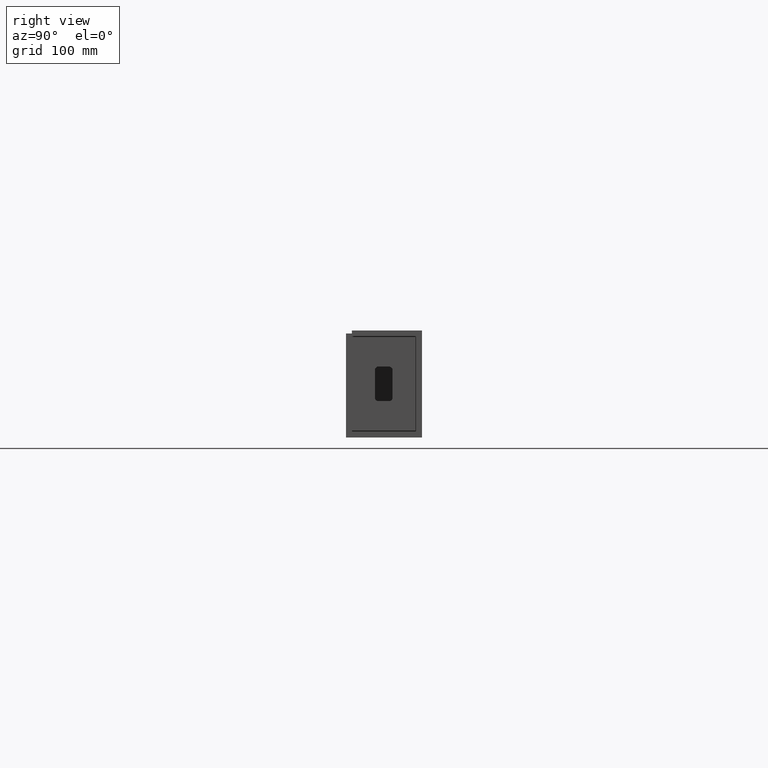
[diagram: clean part render]
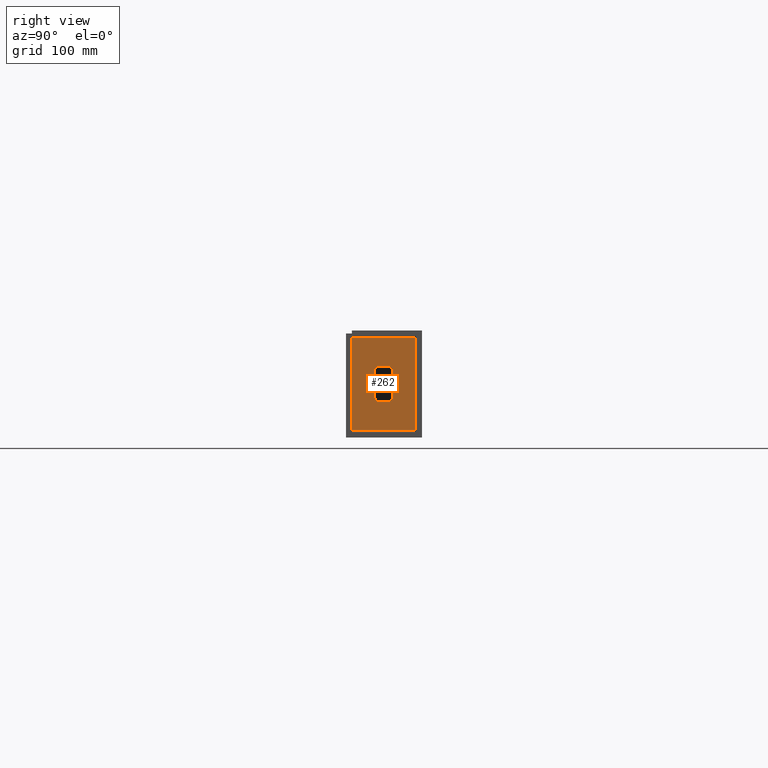
[diagram: same view with one face highlighted and labeled with its STEP entity id]
A machine part, right view. The second image highlights one B-rep face of the part: STEP entity #262.
In plain terms, the highlighted planar face has unit normal (-1, 0, 0).
Its self-contained STEP definition (entity closure, byte-faithful):
#4 = DIRECTION ( 'NONE',  ( -0.0000000000000000000, -0.0000000000000000000, 1.000000000000000000 ) ) ;
#5 = CARTESIAN_POINT ( 'NONE',  ( 975.0000000000000000, 62.99999999999997158, 90.99999999999997158 ) ) ;
#6 = LINE ( 'NONE', #5, #121 ) ;
#21 = DIRECTION ( 'NONE',  ( 0.0000000000000000000, 0.0000000000000000000, 1.000000000000000000 ) ) ;
#22 = DIRECTION ( 'NONE',  ( 1.000000000000000000, 0.0000000000000000000, -0.0000000000000000000 ) ) ;
#23 = CARTESIAN_POINT ( 'NONE',  ( 975.0000000000000000, 43.99999999999996447, 90.99999999999997158 ) ) ;
#29 = CARTESIAN_POINT ( 'NONE',  ( 975.0000000000000000, 93.99999999999997158, 9.000000000000001776 ) ) ;
#40 = CARTESIAN_POINT ( 'NONE',  ( 975.0000000000000000, 62.99999999999997158, 53.99999999999998579 ) ) ;
#44 = CARTESIAN_POINT ( 'NONE',  ( 975.0000000000000000, 7.999999999999983125, 135.9999999999999432 ) ) ;
#53 = CIRCLE ( 'NONE', #460, 5.000000000000004441 ) ;
#67 = DIRECTION ( 'NONE',  ( -0.0000000000000000000, 1.000000000000000000, -0.0000000000000000000 ) ) ;
#68 = CARTESIAN_POINT ( 'NONE',  ( 975.0000000000000000, 93.99999999999997158, 9.000000000000001776 ) ) ;
#71 = LINE ( 'NONE', #68, #1442 ) ;
#88 = VECTOR ( 'NONE', #1086, 1000.000000000000000 ) ;
#103 = CARTESIAN_POINT ( 'NONE',  ( 975.0000000000000000, 93.99999999999997158, 135.9999999999999432 ) ) ;
#112 = CARTESIAN_POINT ( 'NONE',  ( 975.0000000000000000, 43.99999999999997158, 48.99999999999998579 ) ) ;
#121 = VECTOR ( 'NONE', #4, 1000.000000000000000 ) ;
#123 = DIRECTION ( 'NONE',  ( 0.0000000000000000000, 0.0000000000000000000, 1.000000000000000000 ) ) ;
#125 = DIRECTION ( 'NONE',  ( 1.000000000000000000, 0.0000000000000000000, -0.0000000000000000000 ) ) ;
#126 = CARTESIAN_POINT ( 'NONE',  ( 975.0000000000000000, 57.99999999999997868, 53.99999999999997868 ) ) ;
#171 = DIRECTION ( 'NONE',  ( 0.0000000000000000000, 0.0000000000000000000, -1.000000000000000000 ) ) ;
#172 = DIRECTION ( 'NONE',  ( 1.000000000000000000, 0.0000000000000000000, 0.0000000000000000000 ) ) ;
#173 = CARTESIAN_POINT ( 'NONE',  ( 975.0000000000000000, 43.99999999999997158, 53.99999999999997868 ) ) ;
#197 = AXIS2_PLACEMENT_3D ( 'NONE', #126, #125, #123 ) ;
#235 = VECTOR ( 'NONE', #295, 1000.000000000000000 ) ;
#253 = DIRECTION ( 'NONE',  ( -0.0000000000000000000, -1.000000000000000000, -9.912705577010318647E-16 ) ) ;
#254 = CARTESIAN_POINT ( 'NONE',  ( 975.0000000000000000, 43.99999999999996447, 95.99999999999998579 ) ) ;
#257 = LINE ( 'NONE', #254, #1220 ) ;
#262 = ADVANCED_FACE ( 'NONE', ( #1305, #1306 ), #1318, .F. ) ;
#264 = EDGE_CURVE ( 'NONE', #1152, #677, #1311, .T. ) ;
#291 = EDGE_CURVE ( 'NONE', #548, #1285, #1508, .T. ) ;
#295 = DIRECTION ( 'NONE',  ( 0.0000000000000000000, 1.875376730785738212E-16, -1.000000000000000000 ) ) ;
#297 = CARTESIAN_POINT ( 'NONE',  ( 975.0000000000000000, 38.99999999999997158, 90.99999999999997158 ) ) ;
#299 = LINE ( 'NONE', #297, #235 ) ;
#336 = VECTOR ( 'NONE', #1513, 1000.000000000000000 ) ;
#424 = EDGE_CURVE ( 'NONE', #695, #911, #299, .T. ) ;
#439 = AXIS2_PLACEMENT_3D ( 'NONE', #1469, #1480, #1475 ) ;
#452 = EDGE_CURVE ( 'NONE', #677, #806, #257, .T. ) ;
#460 = AXIS2_PLACEMENT_3D ( 'NONE', #173, #172, #171 ) ;
#506 = EDGE_CURVE ( 'NONE', #911, #548, #53, .T. ) ;
#541 = EDGE_CURVE ( 'NONE', #1285, #624, #1280, .T. ) ;
#548 = VERTEX_POINT ( 'NONE', #112 ) ;
#583 = VERTEX_POINT ( 'NONE', #103 ) ;
#586 = ORIENTED_EDGE ( 'NONE', *, *, #424, .F. ) ;
#605 = EDGE_CURVE ( 'NONE', #747, #633, #71, .T. ) ;
#616 = VERTEX_POINT ( 'NONE', #44 ) ;
#624 = VERTEX_POINT ( 'NONE', #40 ) ;
#633 = VERTEX_POINT ( 'NONE', #29 ) ;
#638 = EDGE_CURVE ( 'NONE', #806, #695, #966, .T. ) ;
#662 = EDGE_CURVE ( 'NONE', #624, #1152, #6, .T. ) ;
#671 = ORIENTED_EDGE ( 'NONE', *, *, #941, .T. ) ;
#672 = EDGE_CURVE ( 'NONE', #616, #747, #1559, .T. ) ;
#677 = VERTEX_POINT ( 'NONE', #1546 ) ;
#684 = VECTOR ( 'NONE', #1256, 1000.000000000000000 ) ;
#695 = VERTEX_POINT ( 'NONE', #1539 ) ;
#720 = AXIS2_PLACEMENT_3D ( 'NONE', #23, #22, #21 ) ;
#747 = VERTEX_POINT ( 'NONE', #1405 ) ;
#778 = ORIENTED_EDGE ( 'NONE', *, *, #452, .F. ) ;
#779 = ORIENTED_EDGE ( 'NONE', *, *, #662, .F. ) ;
#806 = VERTEX_POINT ( 'NONE', #1360 ) ;
#874 = EDGE_LOOP ( 'NONE', ( #1172, #1109, #586, #1201, #778, #1120, #779, #1129 ) ) ;
#875 = ORIENTED_EDGE ( 'NONE', *, *, #605, .T. ) ;
#911 = VERTEX_POINT ( 'NONE', #1267 ) ;
#941 = EDGE_CURVE ( 'NONE', #583, #616, #1258, .T. ) ;
#949 = CARTESIAN_POINT ( 'NONE',  ( 975.0000000000000000, 57.99999999999997868, 48.99999999999997158 ) ) ;
#966 = CIRCLE ( 'NONE', #720, 5.000000000000004441 ) ;
#1051 = CARTESIAN_POINT ( 'NONE',  ( 975.0000000000000000, 62.99999999999998579, 90.99999999999997158 ) ) ;
#1086 = DIRECTION ( 'NONE',  ( -0.0000000000000000000, -0.0000000000000000000, -1.000000000000000000 ) ) ;
#1087 = CARTESIAN_POINT ( 'NONE',  ( 975.0000000000000000, 93.99999999999997158, 407.0592527576125690 ) ) ;
#1090 = LINE ( 'NONE', #1087, #88 ) ;
#1100 = EDGE_CURVE ( 'NONE', #583, #633, #1090, .T. ) ;
#1109 = ORIENTED_EDGE ( 'NONE', *, *, #506, .F. ) ;
#1120 = ORIENTED_EDGE ( 'NONE', *, *, #264, .F. ) ;
#1125 = EDGE_LOOP ( 'NONE', ( #1486, #671, #1515, #875 ) ) ;
#1128 = AXIS2_PLACEMENT_3D ( 'NONE', #1315, #1358, #1456 ) ;
#1129 = ORIENTED_EDGE ( 'NONE', *, *, #541, .F. ) ;
#1131 = VECTOR ( 'NONE', #1554, 1000.000000000000000 ) ;
#1152 = VERTEX_POINT ( 'NONE', #1051 ) ;
#1172 = ORIENTED_EDGE ( 'NONE', *, *, #291, .F. ) ;
#1201 = ORIENTED_EDGE ( 'NONE', *, *, #638, .F. ) ;
#1220 = VECTOR ( 'NONE', #253, 1000.000000000000000 ) ;
#1256 = DIRECTION ( 'NONE',  ( 0.0000000000000000000, -1.000000000000000000, 0.0000000000000000000 ) ) ;
#1257 = CARTESIAN_POINT ( 'NONE',  ( 975.0000000000000000, 93.99999999999997158, 135.9999999999999432 ) ) ;
#1258 = LINE ( 'NONE', #1257, #684 ) ;
#1267 = CARTESIAN_POINT ( 'NONE',  ( 975.0000000000000000, 38.99999999999997868, 53.99999999999998579 ) ) ;
#1280 = CIRCLE ( 'NONE', #197, 5.000000000000004441 ) ;
#1285 = VERTEX_POINT ( 'NONE', #949 ) ;
#1305 = FACE_BOUND ( 'NONE', #874, .T. ) ;
#1306 = FACE_OUTER_BOUND ( 'NONE', #1125, .T. ) ;
#1311 = CIRCLE ( 'NONE', #439, 5.000000000000004441 ) ;
#1315 = CARTESIAN_POINT ( 'NONE',  ( 975.0000000000000000, 93.99999999999997158, 407.0592527576125690 ) ) ;
#1318 = PLANE ( 'NONE',  #1128 ) ;
#1358 = DIRECTION ( 'NONE',  ( -1.000000000000000000, 0.0000000000000000000, 0.0000000000000000000 ) ) ;
#1360 = CARTESIAN_POINT ( 'NONE',  ( 975.0000000000000000, 43.99999999999996447, 95.99999999999997158 ) ) ;
#1405 = CARTESIAN_POINT ( 'NONE',  ( 975.0000000000000000, 7.999999999999983125, 9.000000000000001776 ) ) ;
#1442 = VECTOR ( 'NONE', #67, 1000.000000000000000 ) ;
#1456 = DIRECTION ( 'NONE',  ( 0.0000000000000000000, 0.0000000000000000000, 1.000000000000000000 ) ) ;
#1469 = CARTESIAN_POINT ( 'NONE',  ( 975.0000000000000000, 57.99999999999997868, 90.99999999999998579 ) ) ;
#1475 = DIRECTION ( 'NONE',  ( 0.0000000000000000000, 0.0000000000000000000, 1.000000000000000000 ) ) ;
#1480 = DIRECTION ( 'NONE',  ( 1.000000000000000000, 0.0000000000000000000, -0.0000000000000000000 ) ) ;
#1486 = ORIENTED_EDGE ( 'NONE', *, *, #1100, .F. ) ;
#1508 = LINE ( 'NONE', #1514, #336 ) ;
#1513 = DIRECTION ( 'NONE',  ( 0.0000000000000000000, 1.000000000000000000, 0.0000000000000000000 ) ) ;
#1514 = CARTESIAN_POINT ( 'NONE',  ( 975.0000000000000000, 43.99999999999997158, 48.99999999999996447 ) ) ;
#1515 = ORIENTED_EDGE ( 'NONE', *, *, #672, .T. ) ;
#1539 = CARTESIAN_POINT ( 'NONE',  ( 975.0000000000000000, 38.99999999999997158, 90.99999999999997158 ) ) ;
#1546 = CARTESIAN_POINT ( 'NONE',  ( 975.0000000000000000, 57.99999999999997868, 96.00000000000000000 ) ) ;
#1554 = DIRECTION ( 'NONE',  ( -0.0000000000000000000, -0.0000000000000000000, -1.000000000000000000 ) ) ;
#1555 = CARTESIAN_POINT ( 'NONE',  ( 975.0000000000000000, 7.999999999999983125, 407.0592527576125690 ) ) ;
#1559 = LINE ( 'NONE', #1555, #1131 ) ;